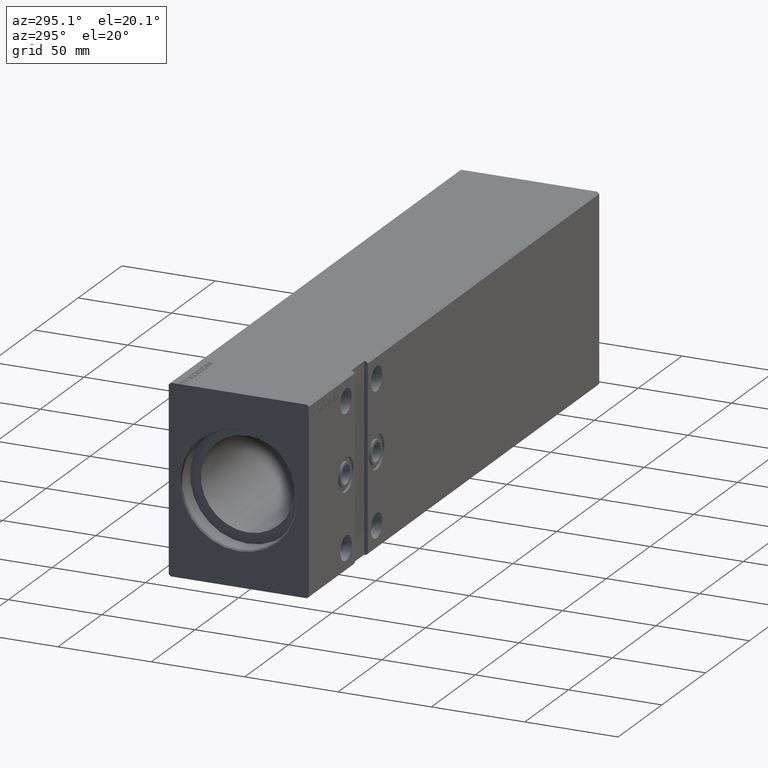
[diagram: clean part render]
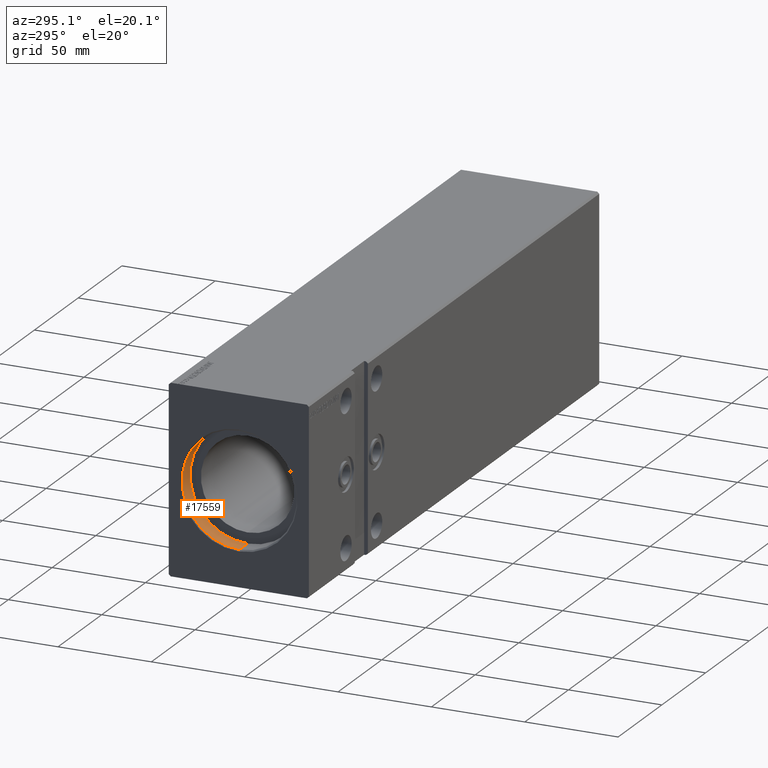
[diagram: same view with one face highlighted and labeled with its STEP entity id]
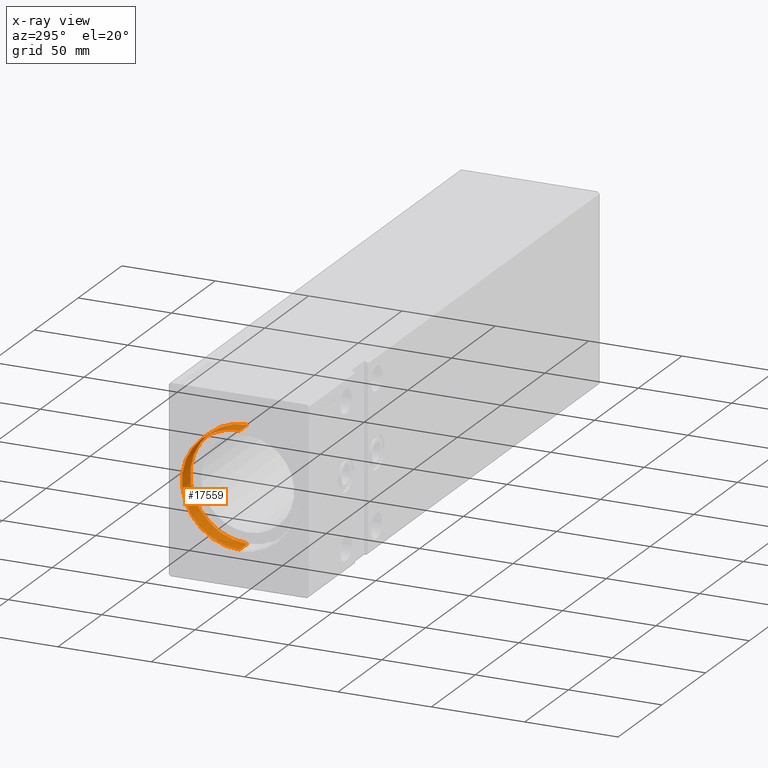
[diagram: x-ray of the same camera — body ghosted, the highlighted face saturated]
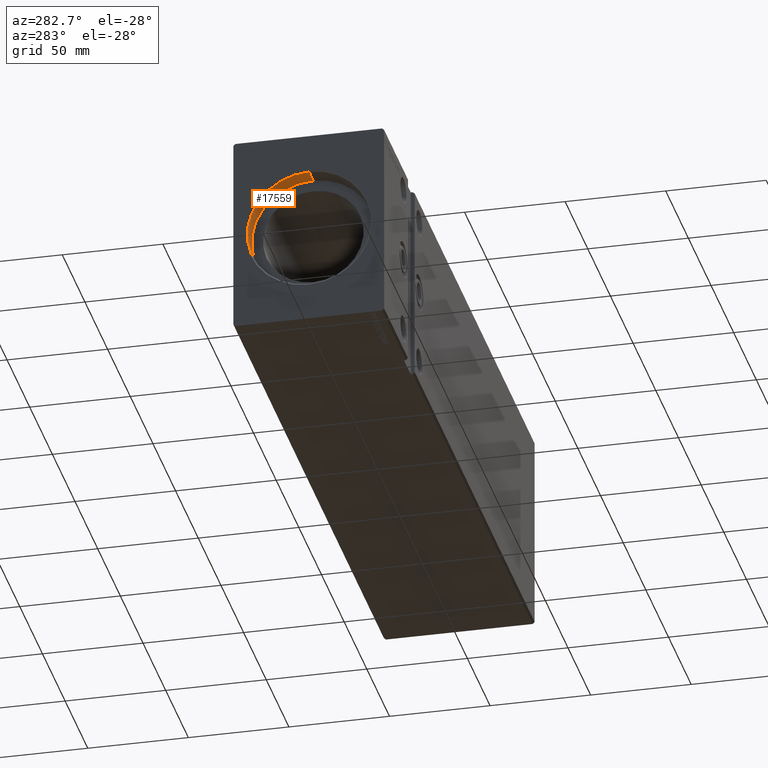
[diagram: same view with one face highlighted and labeled with its STEP entity id]
A machine part, auxiliary view. The second image highlights one B-rep face of the part: STEP entity #17559.
The next image is the same camera in x-ray: the body ghosted, the highlighted face saturated — about 0% of this face is hidden behind the body in this view.
A second angle (auxiliary view) of the same face is appended — the face is thin or edge-on in the first view.
In plain terms, the highlighted cylindrical surface (partial cylindrical patch) has radius 30.75 mm, axis along (-1, -0, -0).
Its self-contained STEP definition (entity closure, byte-faithful):
#404 = CIRCLE ( 'NONE', #7206, 30.75000000000000355 ) ;
#528 = VECTOR ( 'NONE', #27334, 1000.000000000000000 ) ;
#1515 = ORIENTED_EDGE ( 'NONE', *, *, #38959, .T. ) ;
#2619 = VERTEX_POINT ( 'NONE', #8342 ) ;
#2688 = DIRECTION ( 'NONE',  ( -1.000000000000000000, 0.000000000000000000, 0.000000000000000000 ) ) ;
#4304 = ORIENTED_EDGE ( 'NONE', *, *, #30494, .F. ) ;
#7206 = AXIS2_PLACEMENT_3D ( 'NONE', #15207, #2688, #15418 ) ;
#7300 = AXIS2_PLACEMENT_3D ( 'NONE', #32549, #15741, #9575 ) ;
#8342 = CARTESIAN_POINT ( 'NONE',  ( 10.00000000000000000, 0.000000000000000000, 30.75000000000000355 ) ) ;
#8517 = ORIENTED_EDGE ( 'NONE', *, *, #38306, .F. ) ;
#9198 = VECTOR ( 'NONE', #13298, 1000.000000000000000 ) ;
#9575 = DIRECTION ( 'NONE',  ( 0.000000000000000000, 0.000000000000000000, 1.000000000000000000 ) ) ;
#9769 = EDGE_LOOP ( 'NONE', ( #8517, #4304, #14873, #1515 ) ) ;
#13082 = CARTESIAN_POINT ( 'NONE',  ( 10.00000000000000000, 3.765788907378111328E-15, -30.75000000000000355 ) ) ;
#13298 = DIRECTION ( 'NONE',  ( -1.000000000000000000, -0.000000000000000000, -0.000000000000000000 ) ) ;
#14783 = AXIS2_PLACEMENT_3D ( 'NONE', #40740, #37146, #33768 ) ;
#14873 = ORIENTED_EDGE ( 'NONE', *, *, #21496, .T. ) ;
#15207 = CARTESIAN_POINT ( 'NONE',  ( 0.7000000000000790035, 0.000000000000000000, 0.000000000000000000 ) ) ;
#15418 = DIRECTION ( 'NONE',  ( 0.000000000000000000, 0.000000000000000000, -1.000000000000000000 ) ) ;
#15741 = DIRECTION ( 'NONE',  ( -1.000000000000000000, 0.000000000000000000, 0.000000000000000000 ) ) ;
#15855 = CARTESIAN_POINT ( 'NONE',  ( 10.00000000000000000, 0.000000000000000000, 30.75000000000000355 ) ) ;
#15878 = VERTEX_POINT ( 'NONE', #31573 ) ;
#16764 = CIRCLE ( 'NONE', #7300, 30.75000000000000355 ) ;
#17559 = ADVANCED_FACE ( 'NONE', ( #40529 ), #30768, .F. ) ;
#17861 = CARTESIAN_POINT ( 'NONE',  ( 10.00000000000000000, 3.765788907378111328E-15, -30.75000000000000355 ) ) ;
#20094 = LINE ( 'NONE', #15855, #528 ) ;
#21496 = EDGE_CURVE ( 'NONE', #2619, #21680, #20094, .T. ) ;
#21680 = VERTEX_POINT ( 'NONE', #24547 ) ;
#22455 = LINE ( 'NONE', #13082, #9198 ) ;
#24547 = CARTESIAN_POINT ( 'NONE',  ( 0.7000000000000790035, 0.000000000000000000, 30.75000000000000355 ) ) ;
#27334 = DIRECTION ( 'NONE',  ( -1.000000000000000000, -0.000000000000000000, -0.000000000000000000 ) ) ;
#30494 = EDGE_CURVE ( 'NONE', #2619, #35309, #16764, .T. ) ;
#30768 = CYLINDRICAL_SURFACE ( 'NONE', #14783, 30.75000000000000355 ) ;
#31573 = CARTESIAN_POINT ( 'NONE',  ( 0.7000000000000790035, 3.765788907378111328E-15, -30.75000000000000355 ) ) ;
#32549 = CARTESIAN_POINT ( 'NONE',  ( 10.00000000000000000, 0.000000000000000000, 0.000000000000000000 ) ) ;
#33768 = DIRECTION ( 'NONE',  ( 0.000000000000000000, 0.000000000000000000, 1.000000000000000000 ) ) ;
#35309 = VERTEX_POINT ( 'NONE', #17861 ) ;
#37146 = DIRECTION ( 'NONE',  ( -1.000000000000000000, -0.000000000000000000, -0.000000000000000000 ) ) ;
#38306 = EDGE_CURVE ( 'NONE', #35309, #15878, #22455, .T. ) ;
#38959 = EDGE_CURVE ( 'NONE', #21680, #15878, #404, .T. ) ;
#40529 = FACE_OUTER_BOUND ( 'NONE', #9769, .T. ) ;
#40740 = CARTESIAN_POINT ( 'NONE',  ( 10.00000000000000000, 0.000000000000000000, 0.000000000000000000 ) ) ;